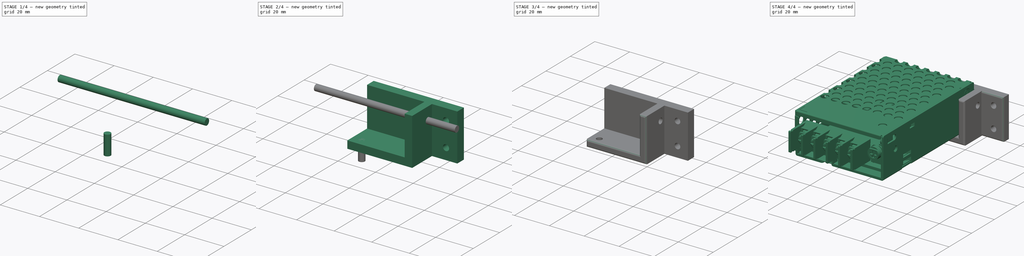
[diagram: build sequence overview — one tinted view per stage of 4, left to right]
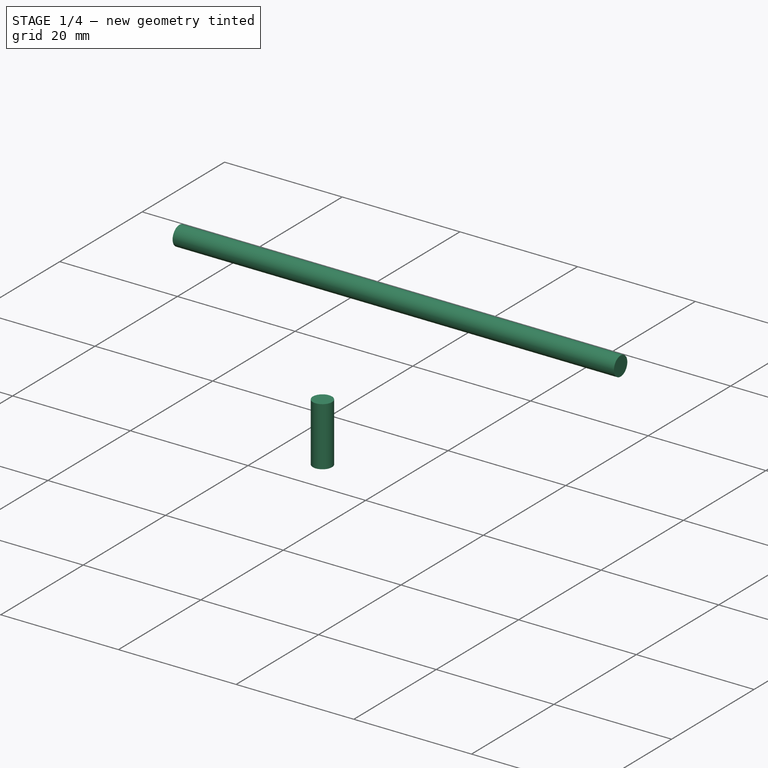
[diagram: stage 1 of 4 — iso view after this stage's code; geometry added in this stage tinted green]
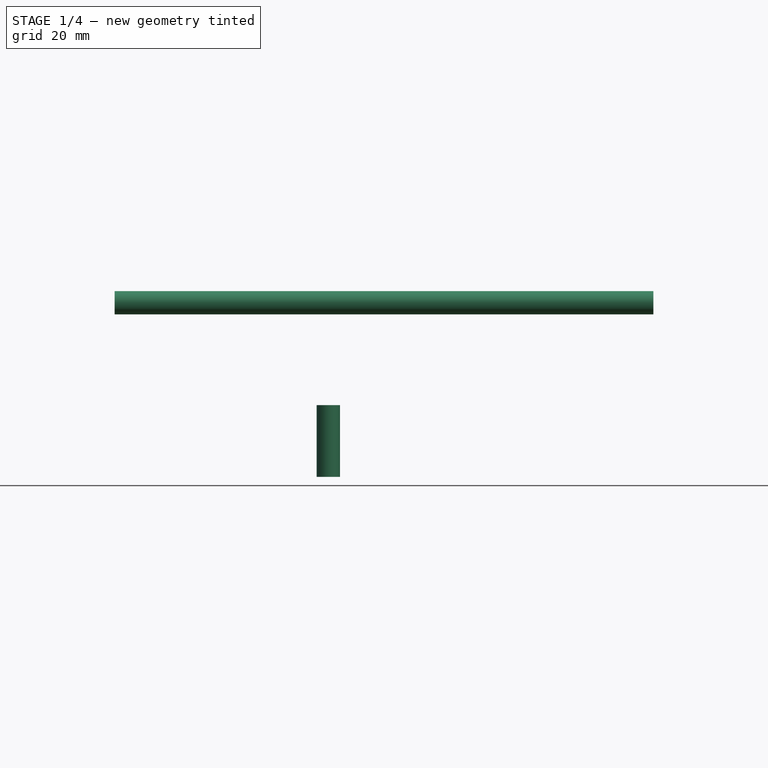
[diagram: stage 1 of 4 — front view after this stage's code; geometry added in this stage tinted green]
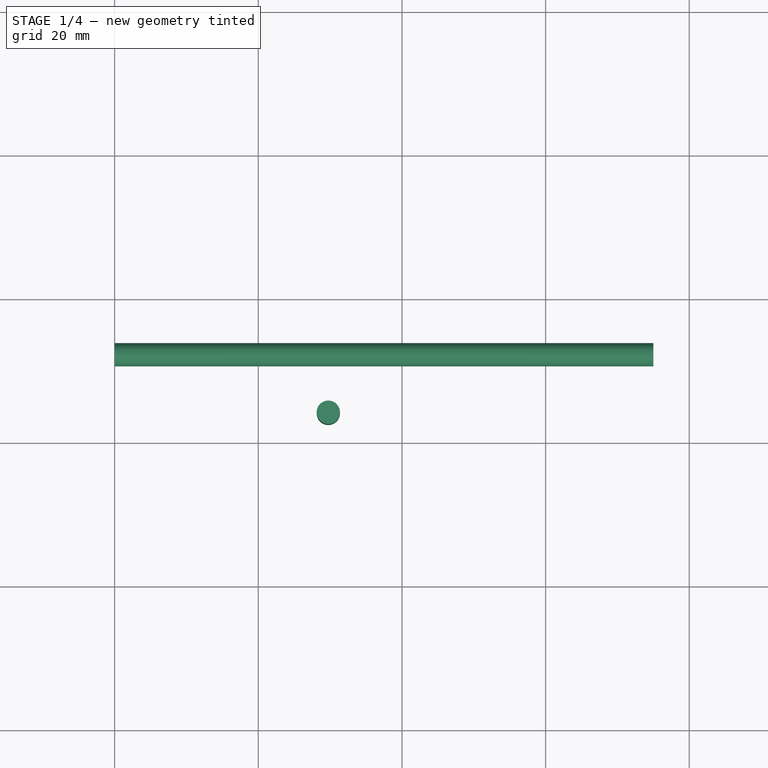
[diagram: stage 1 of 4 — top view after this stage's code; geometry added in this stage tinted green]
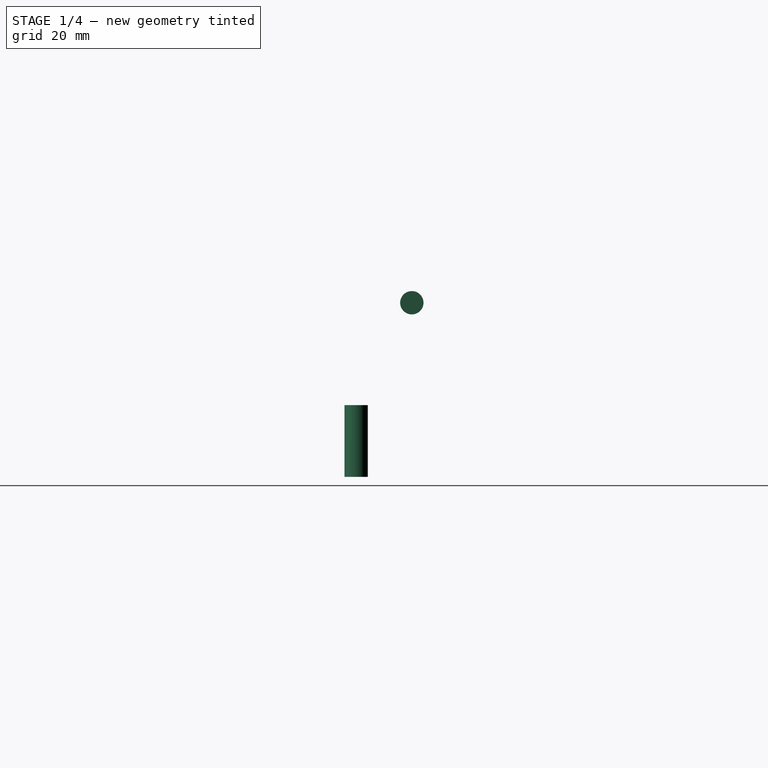
[diagram: stage 1 of 4 — right view after this stage's code; geometry added in this stage tinted green]
FCSTD DOCUMENT  (FreeCAD 1.0R39109 (Git))
Label: CUI_VGS-25W-01Holder
License: All rights reserved
LicenseURL: http://en.wikipedia.org/wiki/All_rights_reserved
objects: Part::Feature×26, Sketcher::SketchObject×4, Part::Extrusion×4, Part::Fillet×3, Part::MultiFuse×2, App::Part×1, Part::Cut×1, Part::Compound×1
note: 45 computed .brp shape members not serialized (recipe doc carries the construction recipe); baked Part::Feature solids carry a one-line shape summary decoded from their .brp

FEATURE [Sketcher::SketchObject] Sketch002
  ArcFitTolerance = 1e-06
  FullyConstrained = true
  MakeInternals = false
  sketch-geometry (1):
    g0: Circle CenterX=29.75 CenterY=-15.85 CenterZ=0 NormalX=0 NormalY=0 NormalZ=1 AngleXU=0 Radius=1.625
  constraints (3):
    c: DistanceX(g0) = 29.75
    c: DistanceY(g0) = -15.85
    c: Diameter(g0) = 3.25
FEATURE [Sketcher::SketchObject] Sketch003
  ArcFitTolerance = 1e-06
  FullyConstrained = true
  MakeInternals = false
  Placement = pos=(0,0,0) rot=(0.57735,0.57735,0.57735;2.0944rad)
  sketch-geometry (1):
    g0: Circle CenterX=-8.1 CenterY=14.25 CenterZ=0 NormalX=0 NormalY=0 NormalZ=1 AngleXU=0 Radius=1.625
  constraints (3):
    c: DistanceX(g0) = -8.1
    c: DistanceY(g0) = 14.25
    c: Diameter(g0) = 3.25
FEATURE [Part::Extrusion] Extrude002
  Base = -> Sketch002
  Dir = (0,0,1)
  DirMode = 2
  FaceMakerClass = Part::FaceMakerBullseye
  FaceMakerMode = 3
  LengthFwd = 10
  LengthRev = 0
  Reversed = true
  Solid = true
  Symmetric = false
FEATURE [Part::Extrusion] Extrude003
  Base = -> Sketch003
  Dir = (1,0,0)
  DirMode = 2
  FaceMakerClass = Part::FaceMakerBullseye
  FaceMakerMode = 3
  LengthFwd = 75
  LengthRev = 0
  Solid = true
  Symmetric = false
FEATURE [Part::MultiFuse] Fusion001  label="cuts"
  Shapes = -> [Extrude002,Extrude003]
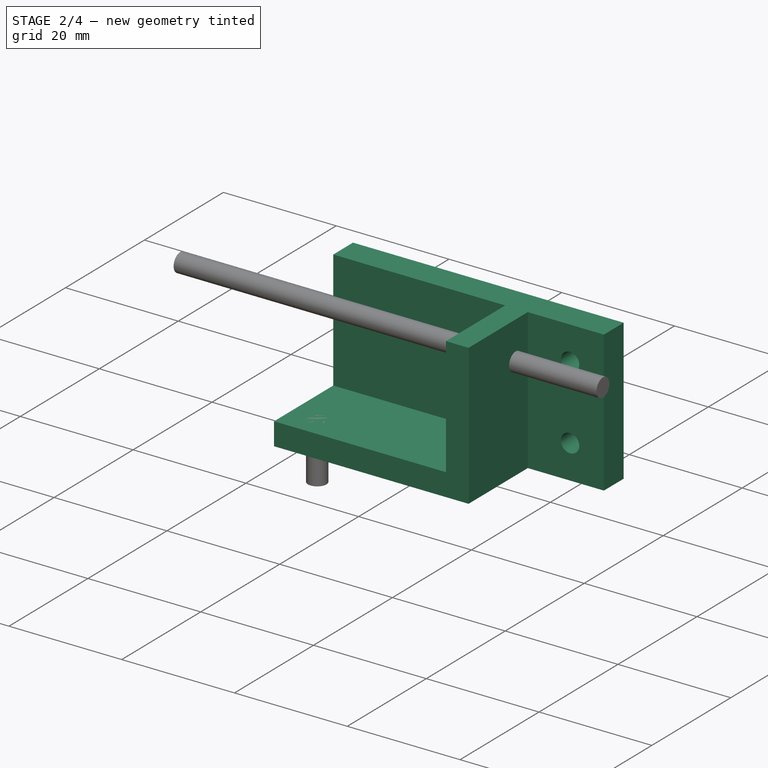
[diagram: stage 2 of 4 — iso view after this stage's code; geometry added in this stage tinted green]
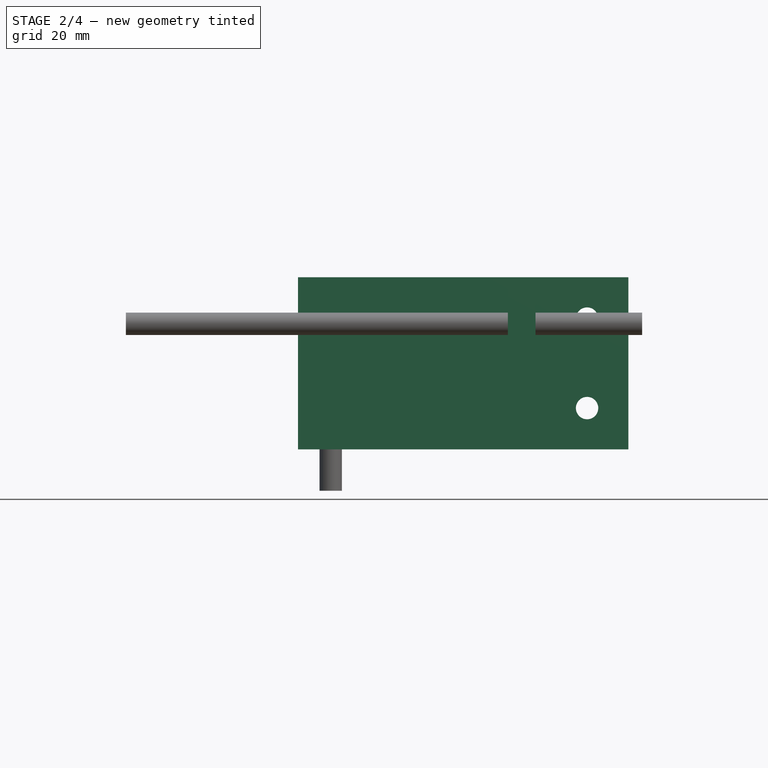
[diagram: stage 2 of 4 — front view after this stage's code; geometry added in this stage tinted green]
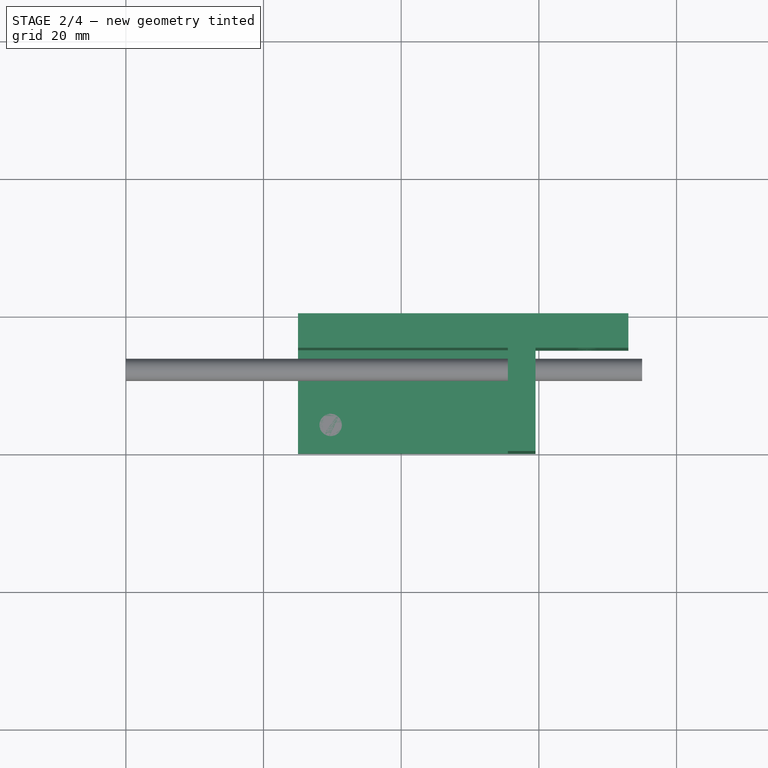
[diagram: stage 2 of 4 — top view after this stage's code; geometry added in this stage tinted green]
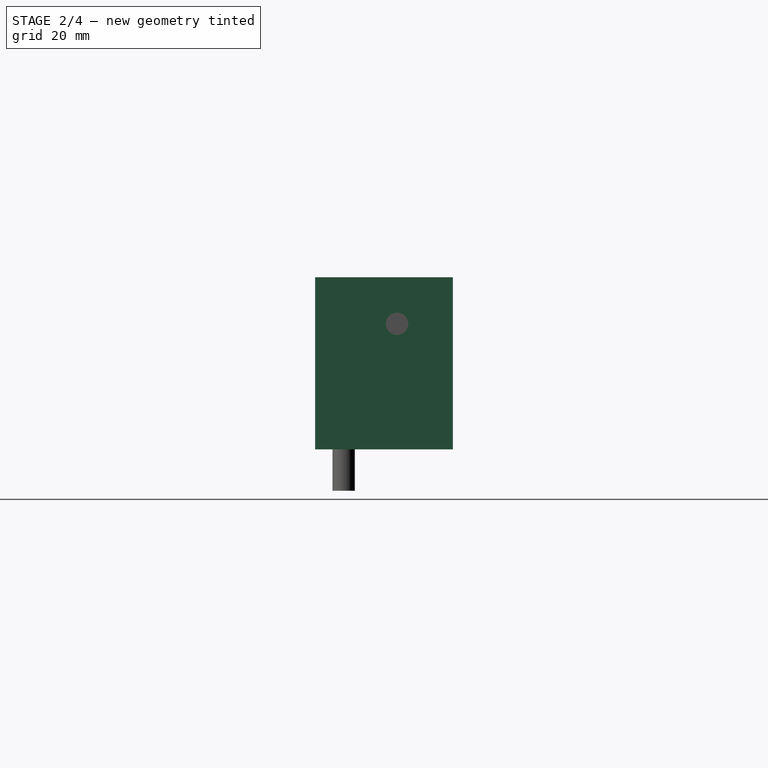
[diagram: stage 2 of 4 — right view after this stage's code; geometry added in this stage tinted green]
FEATURE [Part::Feature] Part__Feature195  label="CUI_VGS-25W-060"
  shape: bbox 6 x 13.55 x 11.3 mm, 86 faces (baked)
FEATURE [Part::Feature] Part__Feature196  label="CUI_VGS-25W-061"
  shape: bbox 55.03 x 25.15 x 80 mm, 254 faces (baked)
FEATURE [Part::Feature] Part__Feature197  label="CUI_VGS-25W-062"
  shape: bbox 7.911 x 7.911 x 1.162 mm, 68 faces (baked)
FEATURE [Part::Feature] Part__Feature198  label="CUI_VGS-25W-063"
  shape: bbox 5.629 x 5.629 x 8.001 mm, 43 faces (baked)
FEATURE [Part::Feature] Part__Feature199  label="CUI_VGS-25W-064"
  shape: bbox 4.944 x 5.8 x 5.8 mm, 37 faces (baked)
FEATURE [Part::Feature] Part__Feature200  label="CUI_VGS-25W-065"
  shape: bbox 6 x 13.55 x 11.3 mm, 86 faces (baked)
FEATURE [Part::Feature] Part__Feature201  label="CUI_VGS-25W-066"
  shape: bbox 5.629 x 5.629 x 8.001 mm, 43 faces (baked)
FEATURE [Part::Feature] Part__Feature202  label="CUI_VGS-25W-067"
  shape: bbox 39.6 x 12 x 16 mm, 290 faces (baked)
FEATURE [Part::Feature] Part__Feature203  label="CUI_VGS-25W-068"
  shape: bbox 5.443 x 12.7 x 3.793 mm, 44 faces (baked)
FEATURE [Part::Feature] Part__Feature204  label="CUI_VGS-25W-069"
  shape: bbox 54.37 x 24.2 x 80.19 mm, 487 faces (baked)
FEATURE [Part::Feature] Part__Feature205  label="CUI_VGS-25W-070"
  shape: bbox 6 x 13.55 x 11.3 mm, 86 faces (baked)
FEATURE [Part::Feature] Part__Feature206  label="CUI_VGS-25W-071"
  shape: bbox 5.413 x 8.147 x 5.557 mm, 54 faces (baked)
FEATURE [Part::Feature] Part__Feature207  label="CUI_VGS-25W-072"
  shape: bbox 6 x 13.55 x 11.3 mm, 86 faces (baked)
FEATURE [Part::Feature] Part__Feature208  label="CUI_VGS-25W-073"
  shape: bbox 9.096 x 12.71 x 7.718 mm, 112 faces (baked)
FEATURE [Part::Feature] Part__Feature209  label="CUI_VGS-25W-074"
  shape: bbox 6 x 13.55 x 11.3 mm, 86 faces (baked)
FEATURE [Part::Feature] Part__Feature210  label="CUI_VGS-25W-075"
  shape: bbox 5.629 x 5.629 x 8.001 mm, 43 faces (baked)
FEATURE [Part::Feature] Part__Feature211  label="CUI_VGS-25W-076"
  shape: bbox 5.629 x 5.629 x 8.001 mm, 43 faces (baked)
FEATURE [Part::Feature] Part__Feature212  label="CUI_VGS-25W-077"
  shape: bbox 7.911 x 7.911 x 1.162 mm, 68 faces (baked)
FEATURE [Part::Feature] Part__Feature213  label="CUI_VGS-25W-078"
  shape: bbox 7.911 x 7.911 x 1.162 mm, 68 faces (baked)
FEATURE [Part::Feature] Part__Feature214  label="CUI_VGS-25W-079"
  shape: bbox 7 x 0.55 x 7 mm, 6 faces (baked)
FEATURE [Part::Feature] Part__Feature215  label="CUI_VGS-25W-080"
  shape: bbox 53.1 x 22.4 x 79.2 mm, 72 faces (baked)
FEATURE [Part::Feature] Part__Feature216  label="CUI_VGS-25W-081"
  shape: bbox 4.624 x 1.433 x 4.618 mm, 8 faces (baked)
FEATURE [Part::Feature] Part__Feature217  label="CUI_VGS-25W-082"
  shape: bbox 7.911 x 7.911 x 1.162 mm, 68 faces (baked)
FEATURE [Part::Feature] Part__Feature218  label="CUI_VGS-25W-083"
  shape: bbox 5.629 x 5.629 x 8.001 mm, 43 faces (baked)
FEATURE [Part::Feature] Part__Feature219  label="CUI_VGS-25W-084"
  shape: bbox 52.65 x 1.621 x 78.18 mm, 385 faces (baked)
FEATURE [Part::Feature] Part__Feature220  label="CUI_VGS-25W-085"
  shape: bbox 7.911 x 7.911 x 1.162 mm, 68 faces (baked)
FEATURE [App::Part] CUI_VGS_25W_007  label="CUI_VGS-25W-01"
  Group = -> [Part__Feature201,Part__Feature202,Part__Feature203,Part__Feature204,Part__Feature205,Part__Feature206,Part__Feature207,Part__Feature208,Part__Feature209,Part__Feature210,Part__Feature195,Part__Feature196,Part__Feature197,Part__Feature198,Part__Feature199,Part__Feature200,Part__Feature211,Part__Feature212,Part__Feature213,Part__Feature214,Part__Feature217,Part__Feature215,Part__Feature216,+3 more]
  Origin = -> Origin020
  Placement = pos=(22.5,-50.5,0.25) rot=(1,0,0;1.5708rad)
FEATURE [Sketcher::SketchObject] Sketch
  ArcFitTolerance = 1e-06
  FullyConstrained = true
  MakeInternals = false
  Placement = pos=(0,0,0) rot=(1,0,0;1.5708rad)
  sketch-geometry (6):
    g0: LineSegment StartX=25 StartY=0 StartZ=0 EndX=25 EndY=-4 EndZ=0
    g1: LineSegment StartX=25 StartY=-4 StartZ=0 EndX=59.5 EndY=-4 EndZ=0
    g2: LineSegment StartX=59.5 StartY=-4 StartZ=0 EndX=59.5 EndY=21 EndZ=0
    g3: LineSegment StartX=59.5 StartY=21 StartZ=0 EndX=55.5 EndY=21 EndZ=0
    g4: LineSegment StartX=55.5 StartY=21 StartZ=0 EndX=55.5 EndY=0 EndZ=0
    g5: LineSegment StartX=55.5 StartY=0 StartZ=0 EndX=25 EndY=0 EndZ=0
  constraints (18):
    c: Coincident(g1,g0)
    c: Horizontal(g1)
    c: Vertical(g2)
    c: Coincident(g3,g2)
    c: Horizontal(g3)
    c: PointOnObject(g4,g-1)
    c: Vertical(g4)
    c: Coincident(g5,g4)
    c: Coincident(g5,g0)
    c: Horizontal(g5)
    c: Vertical(g0)
    c: Coincident(g1,g2)
    c: DistanceX(g0) = 25
    c: DistanceX(g5,g5) = 30.5
    c: DistanceX(g3,g3) = 4
    c: Coincident(g3,g4)
    c: DistanceY(g0,g0) = 4
    c: DistanceY(g2,g2) = 25
FEATURE [Part::Extrusion] Extrude
  Base = -> Sketch
  Dir = (0,-1,2e-16)
  DirMode = 2
  FaceMakerClass = Part::FaceMakerBullseye
  FaceMakerMode = 3
  LengthFwd = 20
  LengthRev = 0
  Solid = true
  Symmetric = false
FEATURE [Sketcher::SketchObject] Sketch001
  ArcFitTolerance = 1e-06
  FullyConstrained = true
  MakeInternals = false
  Placement = pos=(0,0,0) rot=(1,0,0;1.5708rad)
  sketch-geometry (6):
    g0: LineSegment StartX=73 StartY=21 StartZ=0 EndX=25 EndY=21 EndZ=0
    g1: LineSegment StartX=25 StartY=21 StartZ=0 EndX=25 EndY=-4 EndZ=0
    g2: LineSegment StartX=25 StartY=-4 StartZ=0 EndX=73 EndY=-4 EndZ=0
    g3: LineSegment StartX=73 StartY=-4 StartZ=0 EndX=73 EndY=21 EndZ=0
    g4: Circle CenterX=67 CenterY=15 CenterZ=0 NormalX=0 NormalY=0 NormalZ=1 AngleXU=0 Radius=1.625
    g5: Circle CenterX=67 CenterY=2 CenterZ=0 NormalX=0 NormalY=0 NormalZ=1 AngleXU=0 Radius=1.625
  constraints (18):
    c: Horizontal(g0)
    c: Vertical(g1)
    c: DistanceX(g0,g0) = 48
    c: DistanceX(g1) = 25
    c: Coincident(g2,g1)
    c: Coincident(g3,g2)
    c: Coincident(g3,g0)
    c: Vertical(g3)
    c: DistanceY(g1,g1) = 25
    c: Horizontal(g2)
    c: DistanceY(g1) = -4
    c: Coincident(g0,g1)
    c: Equal(g4,g5)
    c: Diameter(g4) = 3.25
    c: Vertical(g5,g4)
    c: DistanceY(g1,g5) = 6
    c: DistanceY(g5,g4) = 13
    c: DistanceX(g1,g5) = 42
FEATURE [Part::Extrusion] Extrude001
  Base = -> Sketch001
  Dir = (0,-1,2e-16)
  DirMode = 2
  FaceMakerClass = Part::FaceMakerBullseye
  FaceMakerMode = 3
  LengthFwd = 5
  LengthRev = 0
  Solid = true
  Symmetric = false
FEATURE [Part::MultiFuse] Fusion
  Shapes = -> [Extrude001,Extrude]
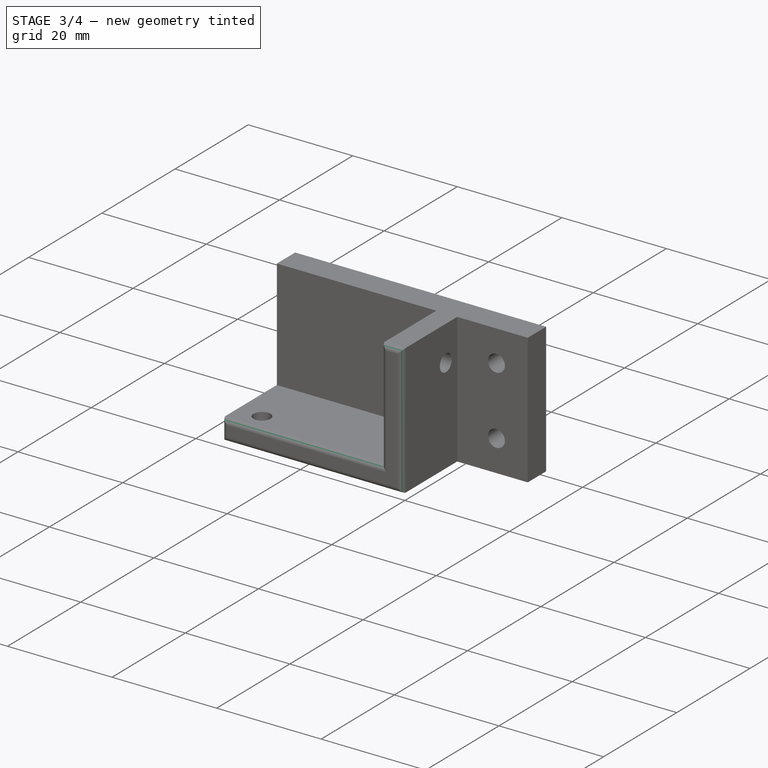
[diagram: stage 3 of 4 — iso view after this stage's code; geometry added in this stage tinted green]
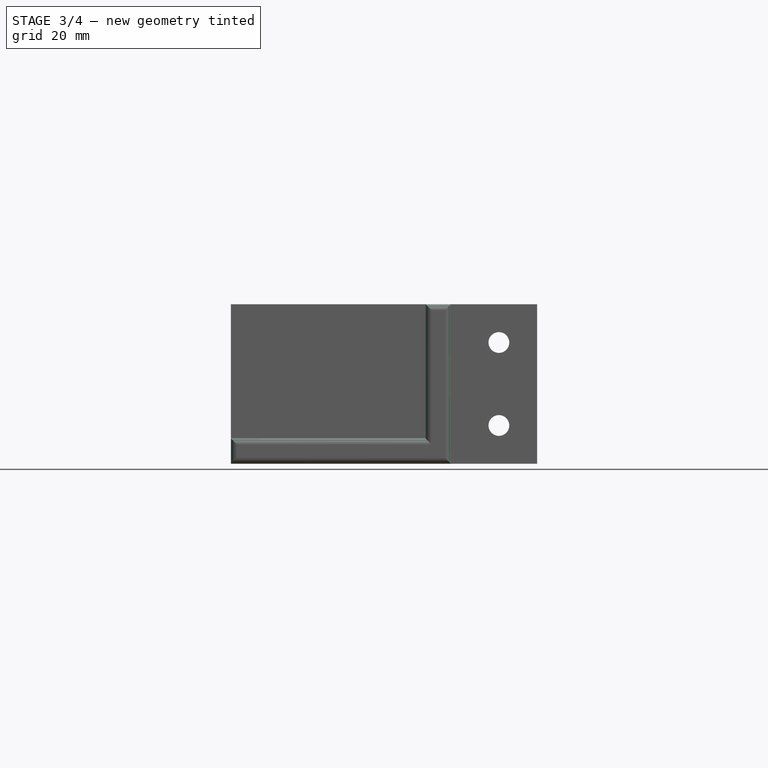
[diagram: stage 3 of 4 — front view after this stage's code; geometry added in this stage tinted green]
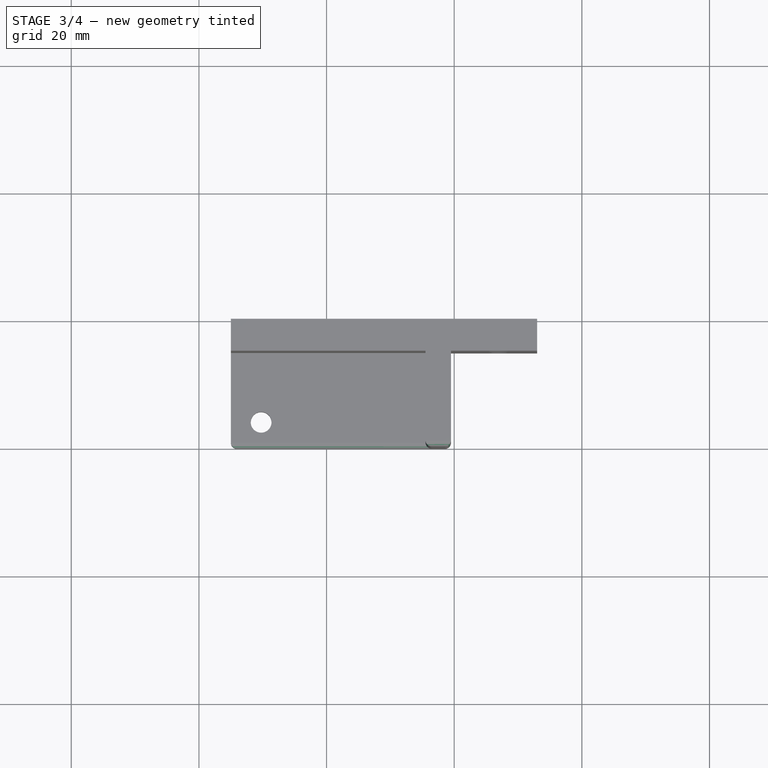
[diagram: stage 3 of 4 — top view after this stage's code; geometry added in this stage tinted green]
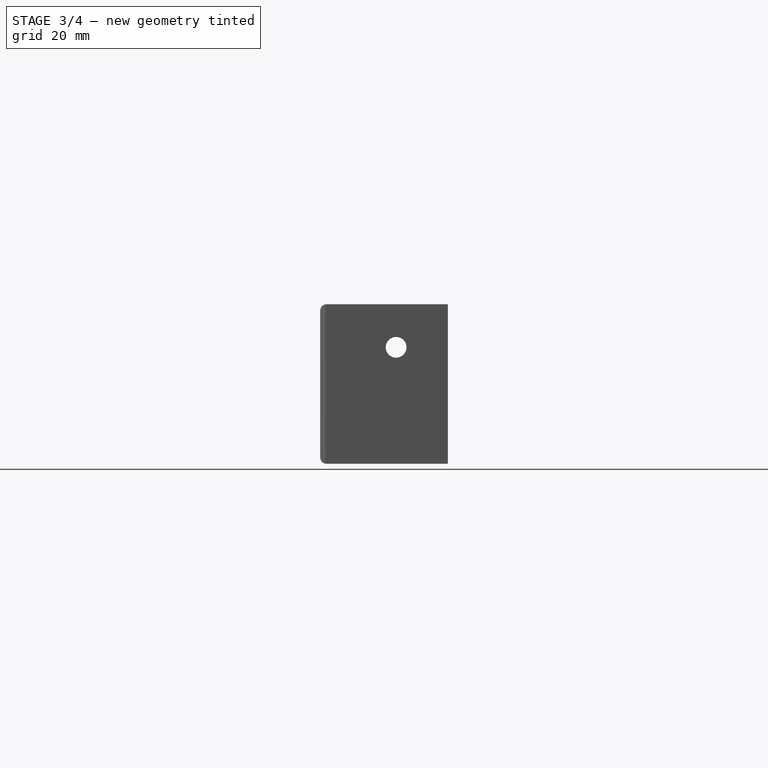
[diagram: stage 3 of 4 — right view after this stage's code; geometry added in this stage tinted green]
FEATURE [Part::Cut] Cut
  Base = -> Fusion
  Tool = -> Fusion001
FEATURE [Part::Fillet] Fillet
  Base = -> Cut
  EdgeLinks = -> Cut [Edge30,Edge33,Edge44,Edge46,Edge47,Edge48]
  Edges = 6 edges r=1: [Edge30,Edge33,Edge44,Edge46,Edge47,Edge48]
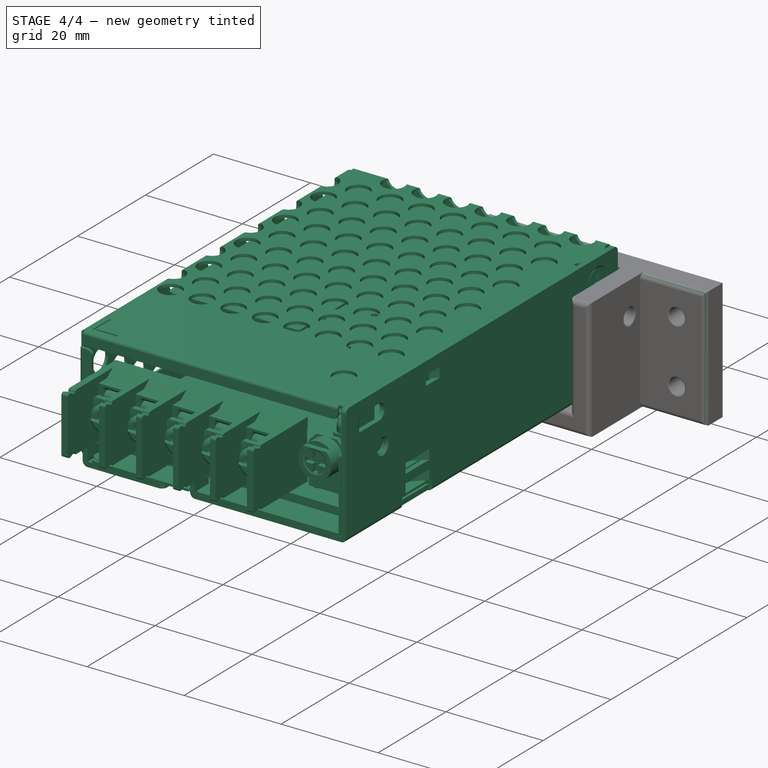
[diagram: stage 4 of 4 — iso view after this stage's code; geometry added in this stage tinted green]
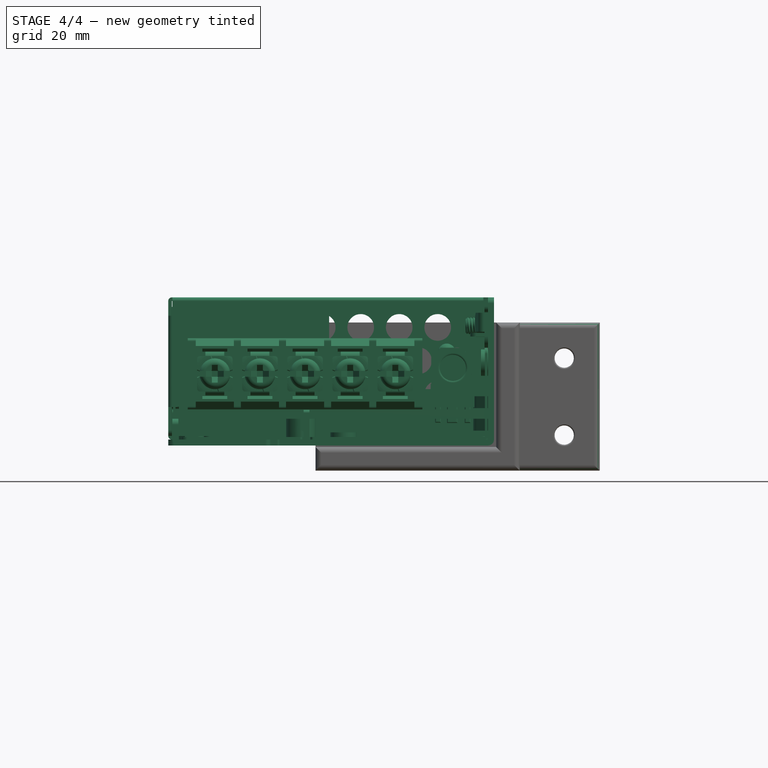
[diagram: stage 4 of 4 — front view after this stage's code; geometry added in this stage tinted green]
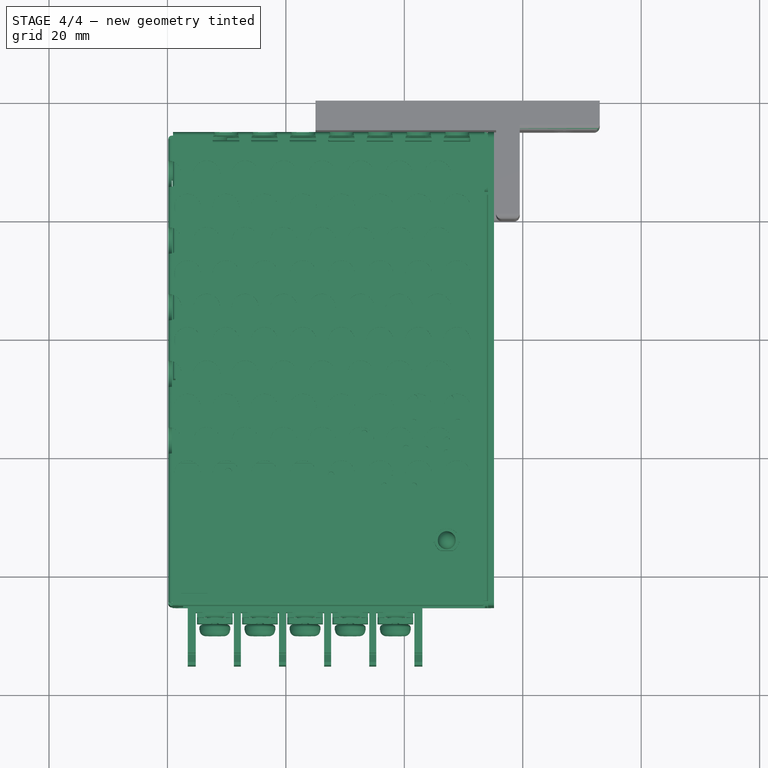
[diagram: stage 4 of 4 — top view after this stage's code; geometry added in this stage tinted green]
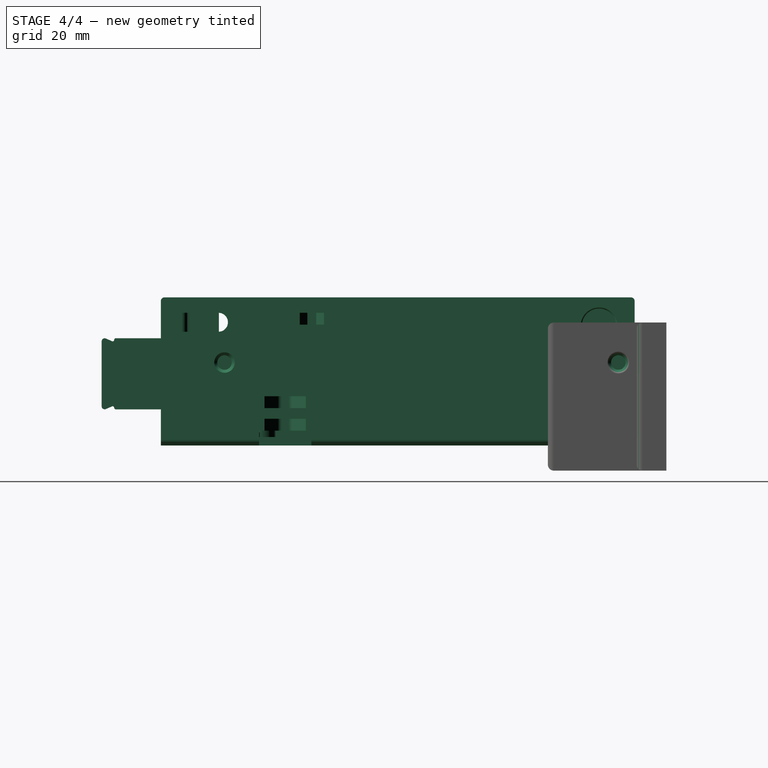
[diagram: stage 4 of 4 — right view after this stage's code; geometry added in this stage tinted green]
FEATURE [Part::Fillet] Fillet001
  Base = -> Fillet
  EdgeLinks = -> Fillet [Edge41,Edge47,Edge48]
  Edges = 3 edges r=1: [Edge41,Edge47,Edge48]
FEATURE [Part::Fillet] Fillet002
  Base = -> Fillet001
  EdgeLinks = -> Fillet001 [Edge15,Edge38,Edge46,Edge47]
  Edges = 4 edges r=0.25: [Edge15,Edge38,Edge46,Edge47]
FEATURE [Part::Compound] Compound
  Links = -> [CUI_VGS_25W_007,Fillet002]
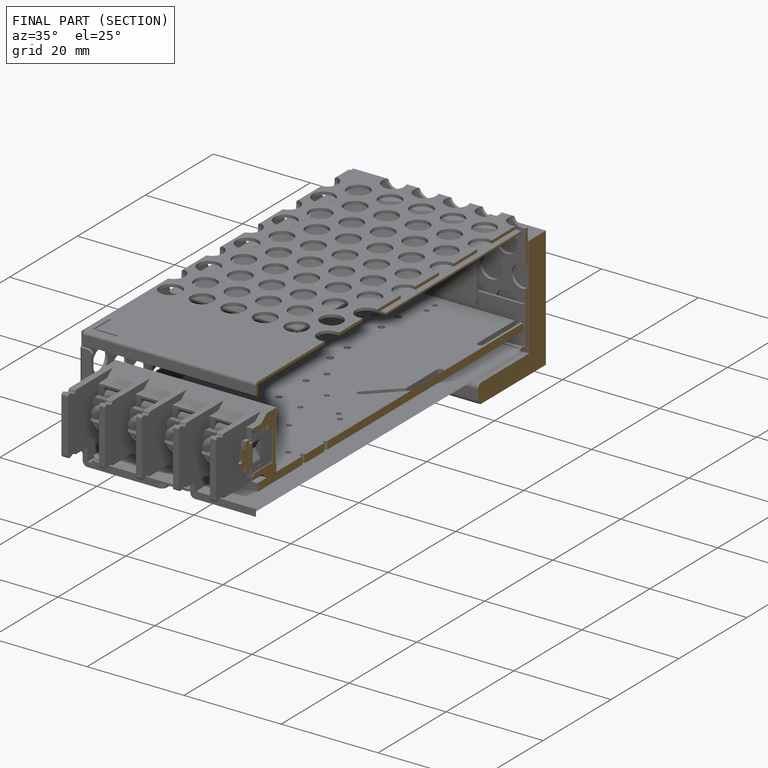
[diagram: finished part — half-section view (interior)]
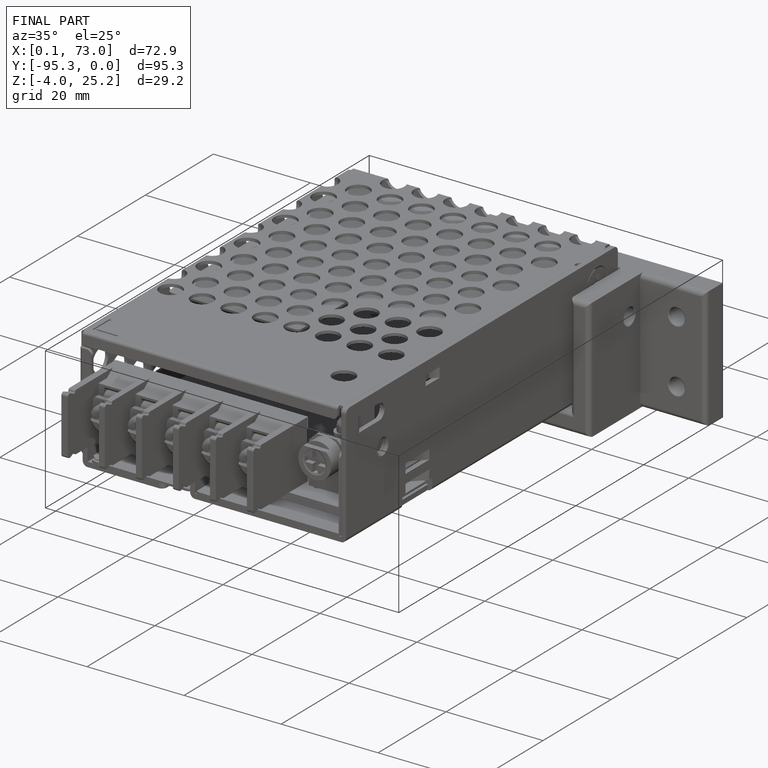
[diagram: finished part — iso view with bounding-box wireframe]
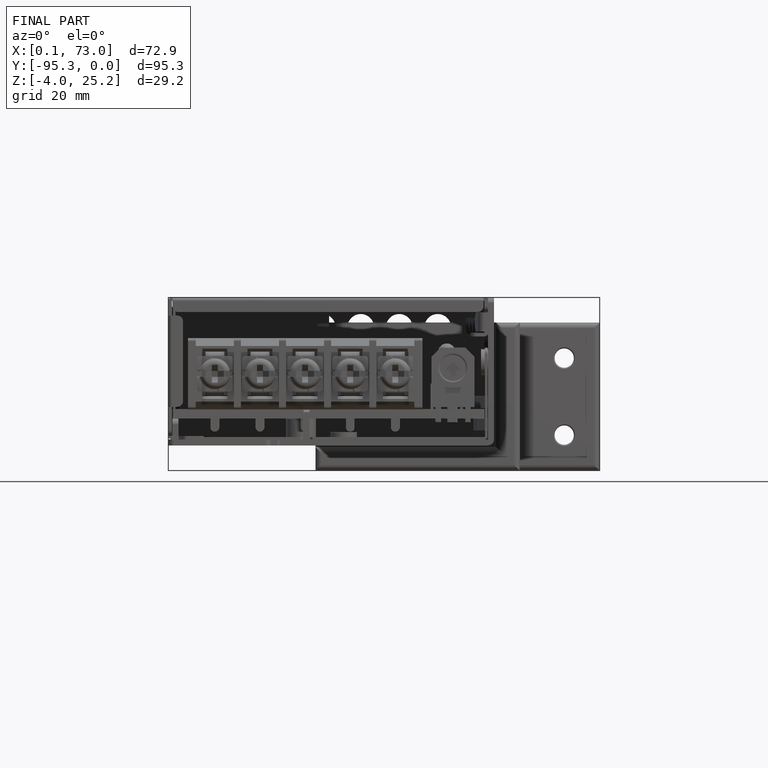
[diagram: finished part — front view with bounding-box wireframe]
